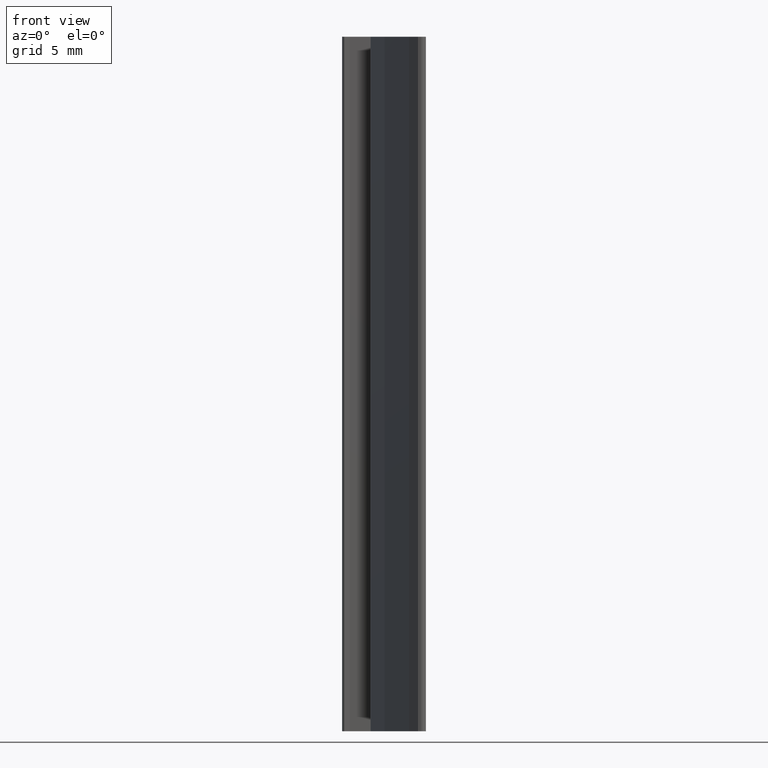
[diagram: clean part render]
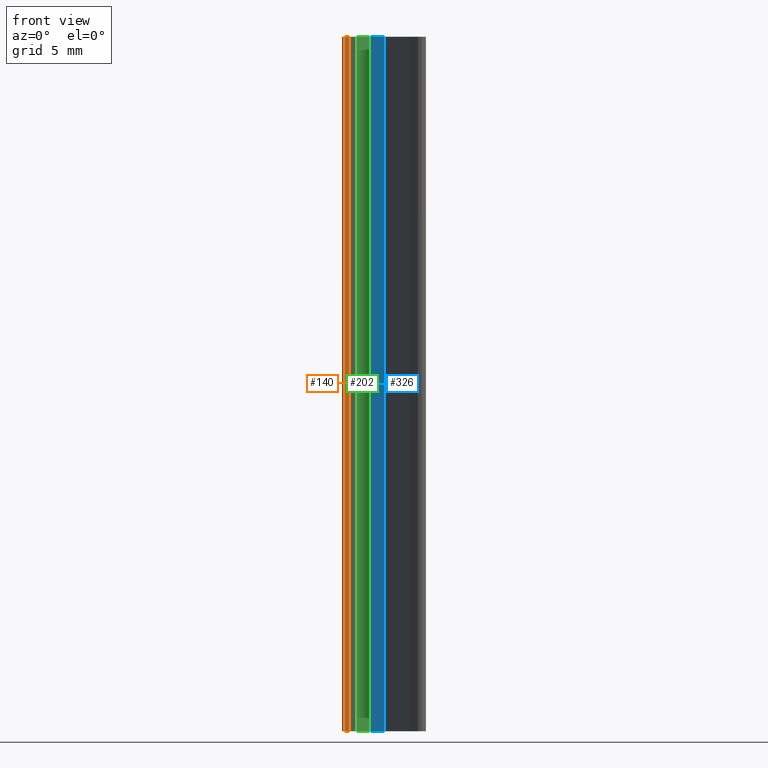
[diagram: same view with three faces highlighted in distinct colors, each labeled with its STEP entity id]
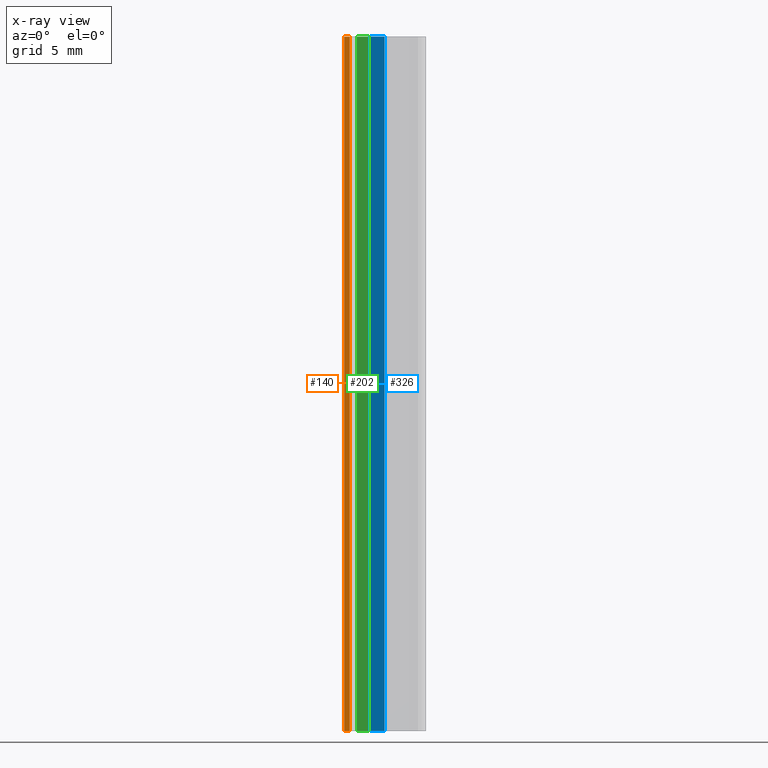
[diagram: x-ray of the same camera — body ghosted, the three highlighted faces saturated]
A machine part, front view with three faces highlighted in distinct colors.
The next image is the same camera in x-ray (body ghosted, the three faces saturated) — at least one of them is partly hidden behind the body in this view.
Their STEP definitions:

[orange] entity #140 — the highlighted planar face has unit normal (0.114, -0.9935, 0).
#82=CARTESIAN_POINT('',(-5.858938819292234,11.242398624141060,0.0));
#83=VERTEX_POINT('',#82);
#91=CARTESIAN_POINT('',(-5.858938819292234,11.242398624141060,50.0));
#92=VERTEX_POINT('',#91);
#93=CARTESIAN_POINT('',(-5.858938819292234,11.242398624141060,0.0));
#94=DIRECTION('',(0.0,0.0,1.0));
#95=VECTOR('',#94,50.0);
#96=LINE('',#93,#95);
#97=EDGE_CURVE('',#83,#92,#96,.T.);
#110=CARTESIAN_POINT('',(-5.858938819292234,11.242398624141060,0.0));
#111=DIRECTION('',(0.113963014309098,-0.993484993026862,0.0));
#112=DIRECTION('',(0.993484993026862,0.113963014309098,0.0));
#113=AXIS2_PLACEMENT_3D('',#110,#111,#112);
#114=PLANE('',#113);
#115=CARTESIAN_POINT('',(-5.465199206703801,11.287564634114460,0.0));
#116=VERTEX_POINT('',#115);
#117=CARTESIAN_POINT('',(-5.858938819292234,11.242398624141060,0.0));
#118=DIRECTION('',(0.993484993026865,0.113963014309073,0.0));
#119=VECTOR('',#118,0.396321650907493);
#120=LINE('',#117,#119);
#121=EDGE_CURVE('',#83,#116,#120,.T.);
#122=ORIENTED_EDGE('',*,*,#121,.T.);
#123=CARTESIAN_POINT('',(-5.465199206703801,11.287564634114460,50.0));
#124=VERTEX_POINT('',#123);
#125=CARTESIAN_POINT('',(-5.465199206703801,11.287564634114460,0.0));
#126=DIRECTION('',(0.0,0.0,1.0));
#127=VECTOR('',#126,50.0);
#128=LINE('',#125,#127);
#129=EDGE_CURVE('',#116,#124,#128,.T.);
#130=ORIENTED_EDGE('',*,*,#129,.T.);
#131=CARTESIAN_POINT('',(-5.858938819292234,11.242398624141060,50.0));
#132=DIRECTION('',(0.993484993026865,0.113963014309073,0.0));
#133=VECTOR('',#132,0.396321650907493);
#134=LINE('',#131,#133);
#135=EDGE_CURVE('',#92,#124,#134,.T.);
#136=ORIENTED_EDGE('',*,*,#135,.F.);
#137=ORIENTED_EDGE('',*,*,#97,.F.);
#138=EDGE_LOOP('',(#122,#130,#136,#137));
#139=FACE_OUTER_BOUND('',#138,.T.);
#140=ADVANCED_FACE('',(#139),#114,.T.);

[blue] entity #326 — the highlighted planar face has unit normal (-0.9688, -0.2476, 0).
#270=CARTESIAN_POINT('',(-3.965201449709184,8.287572930124952,0.0));
#271=VERTEX_POINT('',#270);
#278=CARTESIAN_POINT('',(-3.965201449709184,8.287572930124952,50.0));
#279=VERTEX_POINT('',#278);
#280=CARTESIAN_POINT('',(-3.965201449709184,8.287572930124952,0.0));
#281=DIRECTION('',(0.0,0.0,1.0));
#282=VECTOR('',#281,50.0);
#283=LINE('',#280,#282);
#284=EDGE_CURVE('',#271,#279,#283,.T.);
#296=CARTESIAN_POINT('',(-3.965201449709184,8.287572930124952,0.0));
#297=DIRECTION('',(-0.968849924168237,-0.247648590626318,0.0));
#298=DIRECTION('',(0.247648590626318,-0.968849924168237,0.0));
#299=AXIS2_PLACEMENT_3D('',#296,#297,#298);
#300=PLANE('',#299);
#301=CARTESIAN_POINT('',(-2.956824593572492,4.342604625923286,0.0));
#302=VERTEX_POINT('',#301);
#303=CARTESIAN_POINT('',(-3.965201449709184,8.287572930124952,0.0));
#304=DIRECTION('',(0.247648590626304,-0.968849924168240,0.0));
#305=VECTOR('',#304,4.071805349614181);
#306=LINE('',#303,#305);
#307=EDGE_CURVE('',#271,#302,#306,.T.);
#308=ORIENTED_EDGE('',*,*,#307,.T.);
#309=CARTESIAN_POINT('',(-2.956824593572492,4.342604625923286,50.0));
#310=VERTEX_POINT('',#309);
#311=CARTESIAN_POINT('',(-2.956824593572492,4.342604625923286,0.0));
#312=DIRECTION('',(0.0,0.0,1.0));
#313=VECTOR('',#312,50.0);
#314=LINE('',#311,#313);
#315=EDGE_CURVE('',#302,#310,#314,.T.);
#316=ORIENTED_EDGE('',*,*,#315,.T.);
#317=CARTESIAN_POINT('',(-3.965201449709184,8.287572930124952,50.0));
#318=DIRECTION('',(0.247648590626304,-0.968849924168240,0.0));
#319=VECTOR('',#318,4.071805349614181);
#320=LINE('',#317,#319);
#321=EDGE_CURVE('',#279,#310,#320,.T.);
#322=ORIENTED_EDGE('',*,*,#321,.F.);
#323=ORIENTED_EDGE('',*,*,#284,.F.);
#324=EDGE_LOOP('',(#308,#316,#322,#323));
#325=FACE_OUTER_BOUND('',#324,.T.);
#326=ADVANCED_FACE('',(#325),#300,.T.);

[green] entity #202 — the highlighted planar face has unit normal (0, -1, 0).
#146=CARTESIAN_POINT('',(-4.965191687707375,11.287564634114460,0.0));
#147=VERTEX_POINT('',#146);
#154=CARTESIAN_POINT('',(-4.965191687707375,11.287564634114460,50.0));
#155=VERTEX_POINT('',#154);
#156=CARTESIAN_POINT('',(-4.965191687707375,11.287564634114460,0.0));
#157=DIRECTION('',(0.0,0.0,1.0));
#158=VECTOR('',#157,50.0);
#159=LINE('',#156,#158);
#160=EDGE_CURVE('',#147,#155,#159,.T.);
#172=CARTESIAN_POINT('',(-4.965191687707375,11.287564634114460,0.0));
#173=DIRECTION('',(0.000008720095741,-0.999999999961980,0.0));
#174=DIRECTION('',(0.999999999961980,0.000008720095741,0.0));
#175=AXIS2_PLACEMENT_3D('',#172,#173,#174);
#176=PLANE('',#175);
#177=CARTESIAN_POINT('',(-4.090201421958682,11.287572264112896,0.0));
#178=VERTEX_POINT('',#177);
#179=CARTESIAN_POINT('',(-4.965191687707375,11.287564634114460,0.0));
#180=DIRECTION('',(0.999999999961980,0.000008720095496,0.0));
#181=VECTOR('',#180,0.874990265781894);
#182=LINE('',#179,#181);
#183=EDGE_CURVE('',#147,#178,#182,.T.);
#184=ORIENTED_EDGE('',*,*,#183,.T.);
#185=CARTESIAN_POINT('',(-4.090201421958682,11.287572264112896,50.0));
#186=VERTEX_POINT('',#185);
#187=CARTESIAN_POINT('',(-4.090201421958682,11.287572264112896,0.0));
#188=DIRECTION('',(0.0,0.0,1.0));
#189=VECTOR('',#188,50.0);
#190=LINE('',#187,#189);
#191=EDGE_CURVE('',#178,#186,#190,.T.);
#192=ORIENTED_EDGE('',*,*,#191,.T.);
#193=CARTESIAN_POINT('',(-4.965191687707375,11.287564634114460,50.0));
#194=DIRECTION('',(0.999999999961980,0.000008720095496,0.0));
#195=VECTOR('',#194,0.874990265781894);
#196=LINE('',#193,#195);
#197=EDGE_CURVE('',#155,#186,#196,.T.);
#198=ORIENTED_EDGE('',*,*,#197,.F.);
#199=ORIENTED_EDGE('',*,*,#160,.F.);
#200=EDGE_LOOP('',(#184,#192,#198,#199));
#201=FACE_OUTER_BOUND('',#200,.T.);
#202=ADVANCED_FACE('',(#201),#176,.T.);